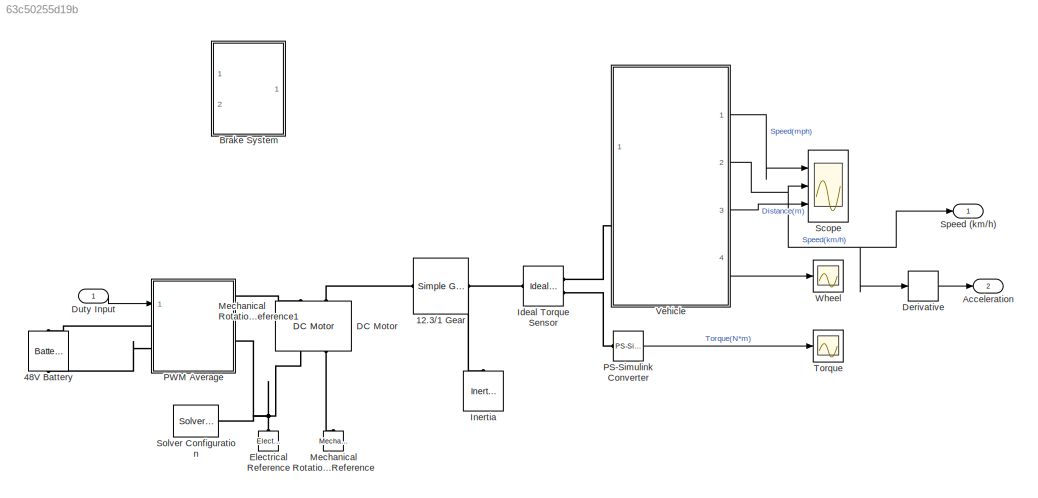
MODEL slx_63c50255d19b
KIND model
CONFIG AbsTol = 1e-3
CONFIG EnableMultiTasking = on
CONFIG FixedStep = auto
CONFIG MaxStep = auto
CONFIG MinStep = auto
CONFIG PreLoadFcn = car_tire_data\nload engine_data
CONFIG RelTol = 1e-3
CONFIG SampleTimeConstraint = Unconstrained
CONFIG Solver = ode23t
CONFIG SolverName = ode23t
CONFIG StartTime = 0.0
CONFIG StopTime = 100
BLOCK [Reference] 12.3//1 Gear  REF=sdl_lib/Gears/Simple Gear
  Ports = [0, 0, 0, 0, 0, 1, 1]
  SourceBlock = sdl_lib/Gears/Simple Gear
  SourceProductBaseCode = LD
  SourceType = Simple Gear
BLOCK [Reference] 48V Battery  REF=ee_lib/Sources/Battery
  NameLocation = right
  Ports = [0, 0, 0, 0, 0, 1, 1]
  SourceBlock = ee_lib/Sources/Battery
  SourceProductBaseCode = PS
  SourceType = Battery
BLOCK [Outport] Acceleration
  Port = 2
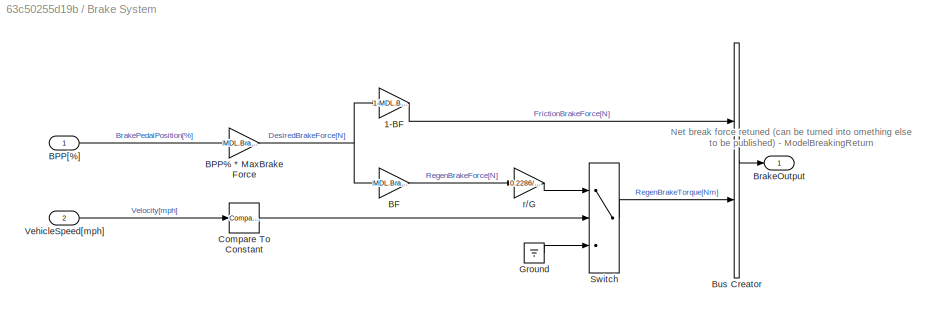
BLOCK [SubSystem] Brake System
  Ports = [2, 1]
  RequestExecContextInheritance = off
BLOCK [Gain] Brake System/1-BF
  Gain = 1-MDL.BrakeSys.RegenFraction
BLOCK [Gain] Brake System/BF
  Gain = MDL.BrakeSys.RegenFraction
BLOCK [Gain] Brake System/BPP% * MaxBrakeForce
  Gain = MDL.BrakeSys.MaxBrakeForce/100
BLOCK [Inport] Brake System/BPP[%]
BLOCK [Outport] Brake System/BrakeOutput
  VectorParamsAs1DForOutWhenUnconnected = off
BLOCK [BusCreator] Brake System/Bus Creator
  DisplayOption = bar
  InheritFromInputs = on
  Inputs = 2
  Ports = [2, 1]
BLOCK [Reference] Brake System/Compare To Constant  REF=simulink/Logic and Bit
Operations/Compare
To Constant
  Ports = [1, 1]
  SourceBlock = simulink/Logic and Bit\nOperations/Compare\nTo Constant
  SourceProductBaseCode = SL
  SourceType = Compare To Constant
BLOCK [Ground] Brake System/Ground
BLOCK [Switch] Brake System/Switch
  Criteria = u2 ~= 0
  InputSameDT = off
  SaturateOnIntegerOverflow = off
BLOCK [Inport] Brake System/VehicleSpeed[mph]
  Port = 2
BLOCK [Gain] Brake System/r//G
  Gain = 0.2286/12.3
BLOCK [Reference] DC Motor  REF=ee_lib/Electromechanical/Brushed Motors/DC Motor
  NameLocation = right
  Ports = [0, 0, 0, 0, 0, 2, 2]
  SourceBlock = ee_lib/Electromechanical/Brushed Motors/DC Motor
  SourceProductBaseCode = PS
  SourceType = DC Motor
BLOCK [Derivative] Derivative
BLOCK [Inport] Duty Input
BLOCK [Reference] Electrical Reference  REF=fl_lib/Electrical/Electrical Elements/Electrical Reference
  NameLocation = right
  Ports = [0, 0, 0, 0, 0, 1]
  SourceBlock = fl_lib/Electrical/Electrical Elements/Electrical Reference
  SourceProductBaseCode = SS
  SourceType = Electrical Reference
BLOCK [Reference] Ideal Torque Sensor  REF=fl_lib/Mechanical/Mechanical Sensors/Ideal Torque Sensor
  Ports = [0, 0, 0, 0, 0, 1, 2]
  SourceBlock = fl_lib/Mechanical/Mechanical Sensors/Ideal Torque Sensor
  SourceProductBaseCode = SS
  SourceType = Ideal Torque Sensor
BLOCK [Reference] Inertia  REF=fl_lib/Mechanical/Rotational Elements/Inertia
  NameLocation = right
  Ports = [0, 0, 0, 0, 0, 1]
  SourceBlock = fl_lib/Mechanical/Rotational Elements/Inertia
  SourceProductBaseCode = SS
  SourceType = Inertia
BLOCK [Reference] Mechanical Rotational Reference  REF=fl_lib/Mechanical/Rotational Elements/Mechanical
Rotational Reference
  NameLocation = right
  Ports = [0, 0, 0, 0, 0, 1]
  SourceBlock = fl_lib/Mechanical/Rotational Elements/Mechanical\nRotational Reference
  SourceProductBaseCode = SS
  SourceType = Mechanical\nRotational Reference
BLOCK [Reference] Mechanical Rotational Reference1  REF=fl_lib/Mechanical/Rotational Elements/Mechanical
Rotational Reference
  NameLocation = top
  Ports = [0, 0, 0, 0, 0, 1]
  SourceBlock = fl_lib/Mechanical/Rotational Elements/Mechanical\nRotational Reference
  SourceProductBaseCode = SS
  SourceType = Mechanical\nRotational Reference
BLOCK [Reference] PS-Simulink Converter  REF=nesl_utility/PS-Simulink
Converter
  Ports = [0, 1, 0, 0, 0, 1]
  SourceBlock = nesl_utility/PS-Simulink\nConverter
  SourceProductBaseCode = SS
  SourceType = PS-Simulink\nConverter
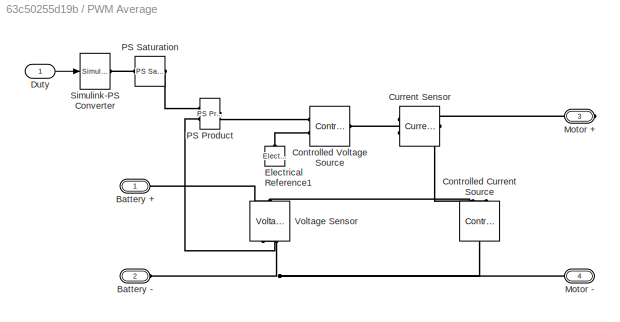
BLOCK [SubSystem] PWM Average
  Ports = [1, 0, 0, 0, 0, 2, 2]
  RequestExecContextInheritance = off
BLOCK [PMIOPort] PWM Average/Battery +
  Side = Left
BLOCK [PMIOPort] PWM Average/Battery -
  Port = 2
  Side = Left
BLOCK [Reference] PWM Average/Controlled Current Source  REF=fl_lib/Electrical/Electrical Sources/Controlled Current
Source
  NameLocation = left
  Ports = [0, 0, 0, 0, 0, 1, 2]
  SourceBlock = fl_lib/Electrical/Electrical Sources/Controlled Current\nSource
  SourceProductBaseCode = SS
  SourceType = Controlled Current\nSource
BLOCK [Reference] PWM Average/Controlled Voltage Source  REF=fl_lib/Electrical/Electrical Sources/Controlled Voltage
Source
  NameLocation = top
  Ports = [0, 0, 0, 0, 0, 1, 2]
  SourceBlock = fl_lib/Electrical/Electrical Sources/Controlled Voltage\nSource
  SourceProductBaseCode = SS
  SourceType = Controlled Voltage\nSource
BLOCK [Reference] PWM Average/Current Sensor  REF=fl_lib/Electrical/Electrical Sensors/Current Sensor
  NameLocation = top
  Ports = [0, 0, 0, 0, 0, 1, 2]
  SourceBlock = fl_lib/Electrical/Electrical Sensors/Current Sensor
  SourceProductBaseCode = SS
  SourceType = Current Sensor
BLOCK [Inport] PWM Average/Duty
BLOCK [Reference] PWM Average/Electrical Reference1  REF=fl_lib/Electrical/Electrical Elements/Electrical Reference
  NameLocation = right
  Ports = [0, 0, 0, 0, 0, 1]
  SourceBlock = fl_lib/Electrical/Electrical Elements/Electrical Reference
  SourceProductBaseCode = SS
  SourceType = Electrical Reference
BLOCK [PMIOPort] PWM Average/Motor +
  Port = 3
  Side = Right
BLOCK [PMIOPort] PWM Average/Motor -
  Port = 4
  Side = Right
BLOCK [Reference] PWM Average/PS Product  REF=fl_ps_legacy_lib/Legacy Physical
Signals/Functions/PS Product
  NameLocation = top
  Ports = [0, 0, 0, 0, 0, 2, 1]
  SourceBlock = fl_ps_legacy_lib/Legacy Physical\nSignals/Functions/PS Product
  SourceProductBaseCode = SS
  SourceType = PS Product
BLOCK [Reference] PWM Average/PS Saturation  REF=fl_ps_legacy_lib/Legacy Physical
Signals/Nonlinear Operators/PS Saturation
  NameLocation = top
  Ports = [0, 0, 0, 0, 0, 1, 1]
  SourceBlock = fl_ps_legacy_lib/Legacy Physical\nSignals/Nonlinear Operators/PS Saturation
  SourceProductBaseCode = SS
  SourceType = PS Saturation
BLOCK [Reference] PWM Average/Simulink-PS Converter  REF=nesl_utility/Simulink-PS
Converter
  Ports = [1, 0, 0, 0, 0, 0, 1]
  SourceBlock = nesl_utility/Simulink-PS\nConverter
  SourceProductBaseCode = SS
  SourceType = Simulink-PS\nConverter
BLOCK [Reference] PWM Average/Voltage Sensor  REF=fl_lib/Electrical/Electrical Sensors/Voltage Sensor
  NameLocation = left
  Ports = [0, 0, 0, 0, 0, 1, 2]
  SourceBlock = fl_lib/Electrical/Electrical Sensors/Voltage Sensor
  SourceProductBaseCode = SS
  SourceType = Voltage Sensor
BLOCK [Scope] Scope
  Floating = off
  NumInputPorts = 3
  Ports = [3]
  ScopeSpecificationString = Simulink.scopes.TimeScopeBlockCfg('CurrentConfiguration', extmgr.ConfigurationSet(extmgr.Configuration('Core','General UI',true),extmgr.Configuration('Core','Source UI',true),extmgr.Configuration('Sources','WiredSimulink',true,'DataLoggingVariableName','ScopeData1','DataLoggingSaveFormat','Array','DataLoggingDecimation','1','DataLoggingDecimateData',true),extmgr.Configuration('Visuals','Time Domai...<+3018ch>
BLOCK [Reference] Solver Configuration  REF=nesl_utility/Solver
Configuration
  Ports = [0, 0, 0, 0, 0, 0, 1]
  SourceBlock = nesl_utility/Solver\nConfiguration
  SourceProductBaseCode = SS
  SourceType = Solver\nConfiguration
BLOCK [Outport] Speed (km//h)
BLOCK [Scope] Torque
  Floating = off
  NumInputPorts = 1
  Ports = [1]
  ScopeSpecificationString = Simulink.scopes.TimeScopeBlockCfg('CurrentConfiguration', extmgr.ConfigurationSet(extmgr.Configuration('Core','General UI',true),extmgr.Configuration('Core','Source UI',true),extmgr.Configuration('Sources','WiredSimulink',true,'DataLoggingVariableName','ScopeData2','DataLoggingSaveFormat','StructureWithTime','DataLoggingLimitDataPoints',true,'DataLoggingDecimation','1','DataLoggingDecimateData',tr...<+1678ch>
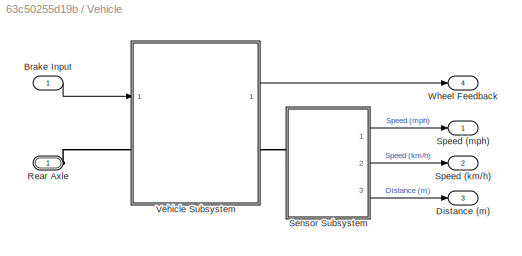
BLOCK [SubSystem] Vehicle
  Ports = [1, 4, 0, 0, 0, 1]
  RequestExecContextInheritance = off
BLOCK [Inport] Vehicle/Brake Input
BLOCK [Outport] Vehicle/Distance (m)
  Port = 3
  VectorParamsAs1DForOutWhenUnconnected = off
BLOCK [PMIOPort] Vehicle/Rear Axle
  Side = Left
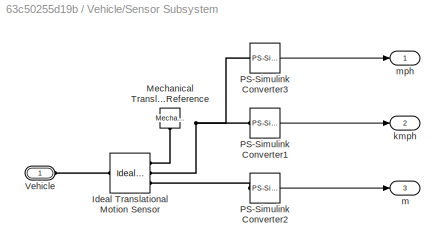
BLOCK [SubSystem] Vehicle/Sensor Subsystem
  Ports = [0, 3, 0, 0, 0, 1]
  RequestExecContextInheritance = off
BLOCK [Reference] Vehicle/Sensor Subsystem/Ideal Translational Motion Sensor  REF=fl_lib/Mechanical/Mechanical Sensors/Ideal Translational
Motion Sensor
  Ports = [0, 0, 0, 0, 0, 1, 3]
  SourceBlock = fl_lib/Mechanical/Mechanical Sensors/Ideal Translational\nMotion Sensor
  SourceProductBaseCode = SS
  SourceType = Ideal Translational\nMotion Sensor
BLOCK [Reference] Vehicle/Sensor Subsystem/Mechanical Translational Reference  REF=fl_lib/Mechanical/Translational
Elements/Mechanical
Translational
Reference
  NameLocation = left
  Ports = [0, 0, 0, 0, 0, 1]
  SourceBlock = fl_lib/Mechanical/Translational\nElements/Mechanical\nTranslational\nReference
  SourceProductBaseCode = SS
  SourceType = Mechanical\nTranslational\nReference
BLOCK [Reference] Vehicle/Sensor Subsystem/PS-Simulink Converter1  REF=nesl_utility/PS-Simulink
Converter
  Ports = [0, 1, 0, 0, 0, 1]
  SourceBlock = nesl_utility/PS-Simulink\nConverter
  SourceProductBaseCode = SS
  SourceType = PS-Simulink\nConverter
BLOCK [Reference] Vehicle/Sensor Subsystem/PS-Simulink Converter2  REF=nesl_utility/PS-Simulink
Converter
  Ports = [0, 1, 0, 0, 0, 1]
  SourceBlock = nesl_utility/PS-Simulink\nConverter
  SourceProductBaseCode = SS
  SourceType = PS-Simulink\nConverter
BLOCK [Reference] Vehicle/Sensor Subsystem/PS-Simulink Converter3  REF=nesl_utility/PS-Simulink
Converter
  Ports = [0, 1, 0, 0, 0, 1]
  SourceBlock = nesl_utility/PS-Simulink\nConverter
  SourceProductBaseCode = SS
  SourceType = PS-Simulink\nConverter
BLOCK [PMIOPort] Vehicle/Sensor Subsystem/Vehicle
  Side = Left
BLOCK [Outport] Vehicle/Sensor Subsystem/kmph
  Port = 2
  VectorParamsAs1DForOutWhenUnconnected = off
BLOCK [Outport] Vehicle/Sensor Subsystem/m
  Port = 3
  VectorParamsAs1DForOutWhenUnconnected = off
BLOCK [Outport] Vehicle/Sensor Subsystem/mph
  VectorParamsAs1DForOutWhenUnconnected = off
BLOCK [Outport] Vehicle/Speed (km//h)
  Port = 2
  VectorParamsAs1DForOutWhenUnconnected = off
BLOCK [Outport] Vehicle/Speed (mph)
  VectorParamsAs1DForOutWhenUnconnected = off
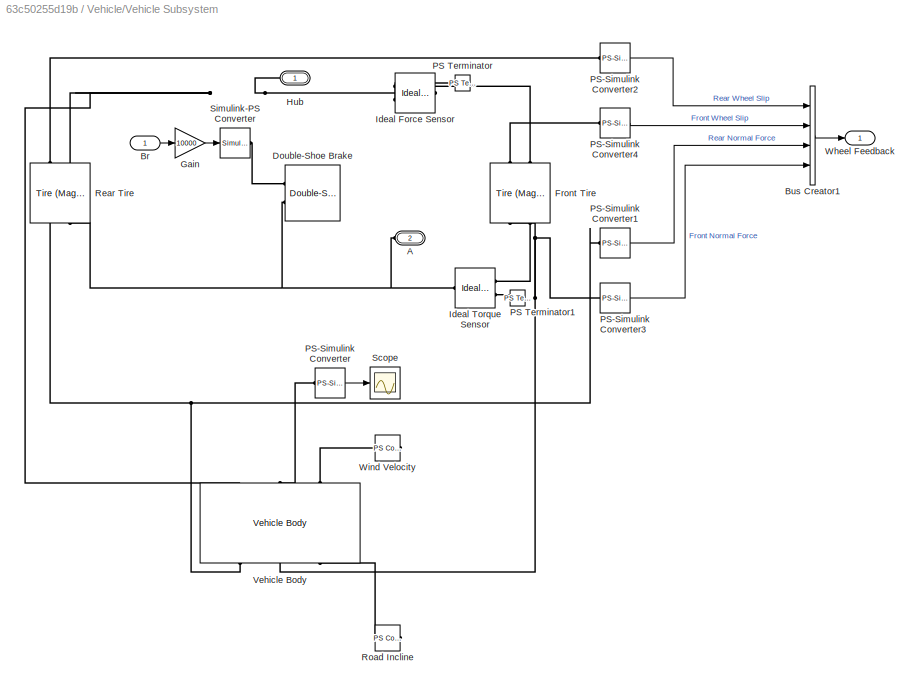
BLOCK [SubSystem] Vehicle/Vehicle Subsystem
  Ports = [1, 1, 0, 0, 0, 1, 1]
  RequestExecContextInheritance = off
BLOCK [PMIOPort] Vehicle/Vehicle Subsystem/A
  NameLocation = top
  Port = 2
  Side = Left
BLOCK [Inport] Vehicle/Vehicle Subsystem/Br
  NameLocation = top
BLOCK [BusCreator] Vehicle/Vehicle Subsystem/Bus Creator1
  DisplayOption = bar
  InheritFromInputs = on
  Inputs = 4
  Ports = [4, 1]
BLOCK [Reference] Vehicle/Vehicle Subsystem/Double-Shoe Brake  REF=sdl_lib/Brakes & Detents/Rotational/Double-Shoe Brake
  NameLocation = top
  Ports = [0, 0, 0, 0, 0, 2]
  SourceBlock = sdl_lib/Brakes & Detents/Rotational/Double-Shoe Brake
  SourceProductBaseCode = LD
  SourceType = Double-Shoe Brake
BLOCK [Reference] Vehicle/Vehicle Subsystem/Front Tire  REF=sdl_lib/Tires & Vehicles/Tire (Magic Formula)
  NameLocation = right
  Ports = [0, 0, 0, 0, 0, 2, 2]
  SourceBlock = sdl_lib/Tires & Vehicles/Tire (Magic Formula)
  SourceProductBaseCode = LD
  SourceType = Tire (Magic Formula)
BLOCK [Gain] Vehicle/Vehicle Subsystem/Gain
  Gain = 10000
  NameLocation = top
BLOCK [PMIOPort] Vehicle/Vehicle Subsystem/Hub
  Side = Right
BLOCK [Reference] Vehicle/Vehicle Subsystem/Ideal Force Sensor  REF=fl_lib/Mechanical/Mechanical Sensors/Ideal Force Sensor
  Ports = [0, 0, 0, 0, 0, 1, 2]
  SourceBlock = fl_lib/Mechanical/Mechanical Sensors/Ideal Force Sensor
  SourceProductBaseCode = SS
  SourceType = Ideal Force Sensor
BLOCK [Reference] Vehicle/Vehicle Subsystem/Ideal Torque Sensor  REF=fl_lib/Mechanical/Mechanical Sensors/Ideal Torque Sensor
  Ports = [0, 0, 0, 0, 0, 1, 2]
  SourceBlock = fl_lib/Mechanical/Mechanical Sensors/Ideal Torque Sensor
  SourceProductBaseCode = SS
  SourceType = Ideal Torque Sensor
BLOCK [Reference] Vehicle/Vehicle Subsystem/PS Terminator  REF=fl_lib/Physical Signals/Sinks/PS Terminator
  Ports = [0, 0, 0, 0, 0, 1]
  SourceBlock = fl_lib/Physical Signals/Sinks/PS Terminator
  SourceProductBaseCode = SS
  SourceType = PS Terminator
BLOCK [Reference] Vehicle/Vehicle Subsystem/PS Terminator1  REF=fl_lib/Physical Signals/Sinks/PS Terminator
  Ports = [0, 0, 0, 0, 0, 1]
  SourceBlock = fl_lib/Physical Signals/Sinks/PS Terminator
  SourceProductBaseCode = SS
  SourceType = PS Terminator
BLOCK [Reference] Vehicle/Vehicle Subsystem/PS-Simulink Converter  REF=nesl_utility/PS-Simulink
Converter
  Ports = [0, 1, 0, 0, 0, 1]
  SourceBlock = nesl_utility/PS-Simulink\nConverter
  SourceProductBaseCode = SS
  SourceType = PS-Simulink\nConverter
BLOCK [Reference] Vehicle/Vehicle Subsystem/PS-Simulink Converter1  REF=nesl_utility/PS-Simulink
Converter
  Ports = [0, 1, 0, 0, 0, 1]
  SourceBlock = nesl_utility/PS-Simulink\nConverter
  SourceProductBaseCode = SS
  SourceType = PS-Simulink\nConverter
BLOCK [Reference] Vehicle/Vehicle Subsystem/PS-Simulink Converter2  REF=nesl_utility/PS-Simulink
Converter
  Ports = [0, 1, 0, 0, 0, 1]
  SourceBlock = nesl_utility/PS-Simulink\nConverter
  SourceProductBaseCode = SS
  SourceType = PS-Simulink\nConverter
BLOCK [Reference] Vehicle/Vehicle Subsystem/PS-Simulink Converter3  REF=nesl_utility/PS-Simulink
Converter
  Ports = [0, 1, 0, 0, 0, 1]
  SourceBlock = nesl_utility/PS-Simulink\nConverter
  SourceProductBaseCode = SS
  SourceType = PS-Simulink\nConverter
BLOCK [Reference] Vehicle/Vehicle Subsystem/PS-Simulink Converter4  REF=nesl_utility/PS-Simulink
Converter
  Ports = [0, 1, 0, 0, 0, 1]
  SourceBlock = nesl_utility/PS-Simulink\nConverter
  SourceProductBaseCode = SS
  SourceType = PS-Simulink\nConverter
BLOCK [Reference] Vehicle/Vehicle Subsystem/Rear Tire  REF=sdl_lib/Tires & Vehicles/Tire (Magic Formula)
  NameLocation = right
  Ports = [0, 0, 0, 0, 0, 2, 2]
  SourceBlock = sdl_lib/Tires & Vehicles/Tire (Magic Formula)
  SourceProductBaseCode = LD
  SourceType = Tire (Magic Formula)
BLOCK [Reference] Vehicle/Vehicle Subsystem/Road Incline  REF=fl_lib/Physical Signals/Sources/PS Constant
  NameLocation = top
  Ports = [0, 0, 0, 0, 0, 0, 1]
  SourceBlock = fl_lib/Physical Signals/Sources/PS Constant
  SourceProductBaseCode = SS
  SourceType = PS Constant
BLOCK [Scope] Vehicle/Vehicle Subsystem/Scope
  Floating = off
  NumInputPorts = 1
  Ports = [1]
  ScopeSpecificationString = Simulink.scopes.TimeScopeBlockCfg('CurrentConfiguration', extmgr.ConfigurationSet(extmgr.Configuration('Core','General UI',true),extmgr.Configuration('Core','Source UI',true),extmgr.Configuration('Sources','WiredSimulink',true,'DataLoggingLimitDataPoints',true,'DataLoggingSaveFormat','Array','DataLoggingDecimation','1','DataLoggingDecimateData',true),extmgr.Configuration('Visuals','Time Domain',tr...<+1643ch>
BLOCK [Reference] Vehicle/Vehicle Subsystem/Simulink-PS Converter  REF=nesl_utility/Simulink-PS
Converter
  NameLocation = top
  Ports = [1, 0, 0, 0, 0, 0, 1]
  SourceBlock = nesl_utility/Simulink-PS\nConverter
  SourceProductBaseCode = SS
  SourceType = Simulink-PS\nConverter
BLOCK [Reference] Vehicle/Vehicle Subsystem/Vehicle Body  REF=sdl_lib/Tires & Vehicles/Vehicle Body
  NameLocation = right
  Ports = [0, 0, 0, 0, 0, 3, 3]
  SourceBlock = sdl_lib/Tires & Vehicles/Vehicle Body
  SourceProductBaseCode = LD
  SourceType = Vehicle Body
BLOCK [Outport] Vehicle/Vehicle Subsystem/Wheel Feedback
BLOCK [Reference] Vehicle/Vehicle Subsystem/Wind Velocity  REF=fl_lib/Physical Signals/Sources/PS Constant
  Ports = [0, 0, 0, 0, 0, 0, 1]
  SourceBlock = fl_lib/Physical Signals/Sources/PS Constant
  SourceProductBaseCode = SS
  SourceType = PS Constant
BLOCK [Outport] Vehicle/Wheel Feedback
  Port = 4
BLOCK [Scope] Wheel
  Floating = off
  NumInputPorts = 1
  Ports = [1]
  ScopeSpecificationString = Simulink.scopes.TimeScopeBlockCfg('CurrentConfiguration', extmgr.ConfigurationSet(extmgr.Configuration('Core','General UI',true),extmgr.Configuration('Core','Source UI',true),extmgr.Configuration('Sources','WiredSimulink',true,'DataLoggingVariableName','ScopeData2'),extmgr.Configuration('Visuals','Time Domain',true,'SerializedDisplays',{struct('MinYLimReal','-10','MaxYLimReal','10','YLabelReal',''...<+1317ch>
ANNOTATION Brake System: Net break force retuned (can be turned into omething else to be published) - ModelBreakingReturn
LINE Brake System/1-BF:1 -> Brake System/Bus Creator:1
LINE Brake System/BF:1 -> Brake System/r//G:1
NET Brake System/BPP% * MaxBrakeForce:1 -> Brake System/1-BF:1, Brake System/BF:1
LINE Brake System/BPP[%]:1 -> Brake System/BPP% * MaxBrakeForce:1
LINE Brake System/Bus Creator:1 -> Brake System/BrakeOutput:1
LINE Brake System/Compare To Constant:1 -> Brake System/Switch:2
LINE Brake System/Ground:1 -> Brake System/Switch:3
LINE Brake System/Switch:1 -> Brake System/Bus Creator:2
LINE Brake System/VehicleSpeed[mph]:1 -> Brake System/Compare To Constant:1
LINE Brake System/r//G:1 -> Brake System/Switch:1
LINE Derivative:1 -> Acceleration:1
LINE Duty Input:1 -> PWM Average:1
LINE PS-Simulink Converter:1 -> Torque:1
LINE PWM Average/Duty:1 -> PWM Average/Simulink-PS Converter:1
LINE Vehicle/Brake Input:1 -> Vehicle/Vehicle Subsystem:1
LINE Vehicle/Sensor Subsystem/PS-Simulink Converter1:1 -> Vehicle/Sensor Subsystem/kmph:1
LINE Vehicle/Sensor Subsystem/PS-Simulink Converter2:1 -> Vehicle/Sensor Subsystem/m:1
LINE Vehicle/Sensor Subsystem/PS-Simulink Converter3:1 -> Vehicle/Sensor Subsystem/mph:1
LINE Vehicle/Sensor Subsystem:1 -> Vehicle/Speed (mph):1
LINE Vehicle/Sensor Subsystem:2 -> Vehicle/Speed (km//h):1
LINE Vehicle/Sensor Subsystem:3 -> Vehicle/Distance (m):1
LINE Vehicle/Vehicle Subsystem/Br:1 -> Vehicle/Vehicle Subsystem/Gain:1
LINE Vehicle/Vehicle Subsystem/Bus Creator1:1 -> Vehicle/Vehicle Subsystem/Wheel Feedback:1
LINE Vehicle/Vehicle Subsystem/Gain:1 -> Vehicle/Vehicle Subsystem/Simulink-PS Converter:1
LINE Vehicle/Vehicle Subsystem/PS-Simulink Converter1:1 -> Vehicle/Vehicle Subsystem/Bus Creator1:3
LINE Vehicle/Vehicle Subsystem/PS-Simulink Converter2:1 -> Vehicle/Vehicle Subsystem/Bus Creator1:1
LINE Vehicle/Vehicle Subsystem/PS-Simulink Converter3:1 -> Vehicle/Vehicle Subsystem/Bus Creator1:4
LINE Vehicle/Vehicle Subsystem/PS-Simulink Converter4:1 -> Vehicle/Vehicle Subsystem/Bus Creator1:2
LINE Vehicle/Vehicle Subsystem/PS-Simulink Converter:1 -> Vehicle/Vehicle Subsystem/Scope:1
LINE Vehicle/Vehicle Subsystem:1 -> Vehicle/Wheel Feedback:1
LINE Vehicle:1 -> Scope:1
NET Vehicle:2 -> Derivative:1, Scope:2, Speed (km//h):1
LINE Vehicle:3 -> Scope:3
LINE Vehicle:4 -> Wheel:1
PLINE 12.3//1 Gear:LConn1 -- DC Motor:LConn2
PNET net1: 12.3//1 Gear:RConn1 -- Ideal Torque Sensor:LConn1 -- Inertia:LConn1
PLINE 48V Battery:LConn1 -- PWM Average:LConn1
PLINE 48V Battery:RConn1 -- PWM Average:LConn2
PLINE DC Motor:LConn1 -- PWM Average:RConn1
PNET net2: DC Motor:RConn1 -- Electrical Reference:LConn1 -- PWM Average:RConn2 -- Solver Configuration:RConn1
PLINE DC Motor:RConn2 -- Mechanical Rotational Reference:LConn1
PLINE Ideal Torque Sensor:RConn1 -- Vehicle:LConn1
PLINE Ideal Torque Sensor:RConn2 -- PS-Simulink Converter:LConn1
PNET net3: PWM Average/Battery +:RConn1 -- PWM Average/Controlled Current Source:RConn2 -- PWM Average/Voltage Sensor:LConn1
PNET net4: PWM Average/Battery -:RConn1 -- PWM Average/Controlled Current Source:LConn1 -- PWM Average/Motor -:RConn1 -- PWM Average/Voltage Sensor:RConn2
PLINE PWM Average/Controlled Current Source:RConn1 -- PWM Average/Current Sensor:RConn1
PLINE PWM Average/Controlled Voltage Source:LConn1 -- PWM Average/Current Sensor:LConn1
PLINE PWM Average/Controlled Voltage Source:RConn1 -- PWM Average/PS Product:RConn1
PLINE PWM Average/Controlled Voltage Source:RConn2 -- PWM Average/Electrical Reference1:LConn1
PLINE PWM Average/Current Sensor:RConn2 -- PWM Average/Motor +:RConn1
PLINE PWM Average/PS Product:LConn1 -- PWM Average/PS Saturation:RConn1
PLINE PWM Average/PS Product:LConn2 -- PWM Average/Voltage Sensor:RConn1
PLINE PWM Average/PS Saturation:LConn1 -- PWM Average/Simulink-PS Converter:RConn1
PLINE Vehicle/Rear Axle:RConn1 -- Vehicle/Vehicle Subsystem:LConn1
PLINE Vehicle/Sensor Subsystem/Ideal Translational Motion Sensor:LConn1 -- Vehicle/Sensor Subsystem/Vehicle:RConn1
PLINE Vehicle/Sensor Subsystem/Ideal Translational Motion Sensor:RConn1 -- Vehicle/Sensor Subsystem/Mechanical Translational Reference:LConn1
PNET net5: Vehicle/Sensor Subsystem/Ideal Translational Motion Sensor:RConn2 -- Vehicle/Sensor Subsystem/PS-Simulink Converter1:LConn1 -- Vehicle/Sensor Subsystem/PS-Simulink Converter3:LConn1
PLINE Vehicle/Sensor Subsystem/Ideal Translational Motion Sensor:RConn3 -- Vehicle/Sensor Subsystem/PS-Simulink Converter2:LConn1
PLINE Vehicle/Sensor Subsystem:LConn1 -- Vehicle/Vehicle Subsystem:RConn1
PNET net6: Vehicle/Vehicle Subsystem/A:RConn1 -- Vehicle/Vehicle Subsystem/Double-Shoe Brake:LConn2 -- Vehicle/Vehicle Subsystem/Ideal Torque Sensor:LConn1 -- Vehicle/Vehicle Subsystem/Rear Tire:LConn2
PLINE Vehicle/Vehicle Subsystem/Double-Shoe Brake:LConn1 -- Vehicle/Vehicle Subsystem/Simulink-PS Converter:RConn1
PNET net7: Vehicle/Vehicle Subsystem/Front Tire:LConn1 -- Vehicle/Vehicle Subsystem/PS-Simulink Converter3:LConn1 -- Vehicle/Vehicle Subsystem/Vehicle Body:RConn2
PLINE Vehicle/Vehicle Subsystem/Front Tire:LConn2 -- Vehicle/Vehicle Subsystem/Ideal Torque Sensor:RConn1
PLINE Vehicle/Vehicle Subsystem/Front Tire:RConn1 -- Vehicle/Vehicle Subsystem/PS-Simulink Converter4:LConn1
PLINE Vehicle/Vehicle Subsystem/Front Tire:RConn2 -- Vehicle/Vehicle Subsystem/Ideal Force Sensor:RConn1
PNET net8: Vehicle/Vehicle Subsystem/Hub:RConn1 -- Vehicle/Vehicle Subsystem/Ideal Force Sensor:LConn1 -- Vehicle/Vehicle Subsystem/Rear Tire:RConn2 -- Vehicle/Vehicle Subsystem/Vehicle Body:LConn1
PLINE Vehicle/Vehicle Subsystem/Ideal Force Sensor:RConn2 -- Vehicle/Vehicle Subsystem/PS Terminator:LConn1
PLINE Vehicle/Vehicle Subsystem/Ideal Torque Sensor:RConn2 -- Vehicle/Vehicle Subsystem/PS Terminator1:LConn1
PNET net9: Vehicle/Vehicle Subsystem/PS-Simulink Converter1:LConn1 -- Vehicle/Vehicle Subsystem/Rear Tire:LConn1 -- Vehicle/Vehicle Subsystem/Vehicle Body:RConn1
PLINE Vehicle/Vehicle Subsystem/PS-Simulink Converter2:LConn1 -- Vehicle/Vehicle Subsystem/Rear Tire:RConn1
PLINE Vehicle/Vehicle Subsystem/PS-Simulink Converter:LConn1 -- Vehicle/Vehicle Subsystem/Vehicle Body:LConn2
PLINE Vehicle/Vehicle Subsystem/Road Incline:RConn1 -- Vehicle/Vehicle Subsystem/Vehicle Body:RConn3
PLINE Vehicle/Vehicle Subsystem/Vehicle Body:LConn3 -- Vehicle/Vehicle Subsystem/Wind Velocity:RConn1
note: NET lines group one-source signal fan-out (src -> all destinations, sorted); 1:1 wires keep LINE; PNET lines group multi-terminal physical nets as a canonical sorted terminal list (undirected conserving connections); 2-terminal nets keep the pairwise PLINE form
